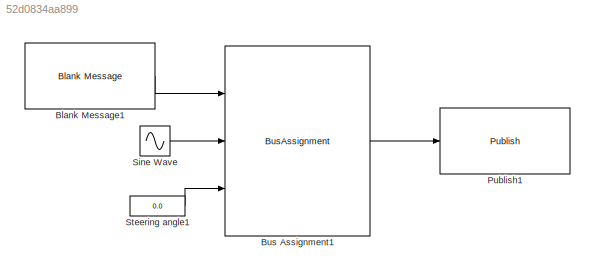
MODEL slx_52d0834aa899
KIND model
CONFIG AbsTol = auto
CONFIG EnableMultiTasking = off
CONFIG FixedStep = auto
CONFIG MaxStep = auto
CONFIG MinStep = auto
CONFIG RelTol = 1e-3
CONFIG SampleTimeConstraint = Unconstrained
CONFIG Solver = VariableStepAuto
CONFIG SolverName = VariableStepAuto
CONFIG StartTime = 0.0
CONFIG StopTime = inf
BLOCK [Reference] Blank Message1  REF=robotlib/Blank Message
  Ports = [0, 1]
  SourceBlock = robotlib/Blank Message
  SourceProductBaseCode = RO
  SourceProductName = Robotics System Toolbox
  SourceType = ROS Blank Message
BLOCK [BusAssignment] Bus Assignment1
  AssignedSignals = Linear.X,Angular.Z
  Ports = [3, 1]
BLOCK [Reference] Publish1  REF=robotlib/Publish
  Ports = [1]
  SourceBlock = robotlib/Publish
  SourceProductBaseCode = RO
  SourceProductName = Robotics System Toolbox
  SourceType = ROS Publish
BLOCK [Sin] Sine Wave
  Amplitude = 4
  Bias = 3
  Frequency = 3
  Ports = [0, 1]
  SampleTime = 0
BLOCK [Constant] Steering angle1
  Value = 0.0
LINE Blank Message1:1 -> Bus Assignment1:1
LINE Bus Assignment1:1 -> Publish1:1
LINE Sine Wave:1 -> Bus Assignment1:2
LINE Steering angle1:1 -> Bus Assignment1:3
